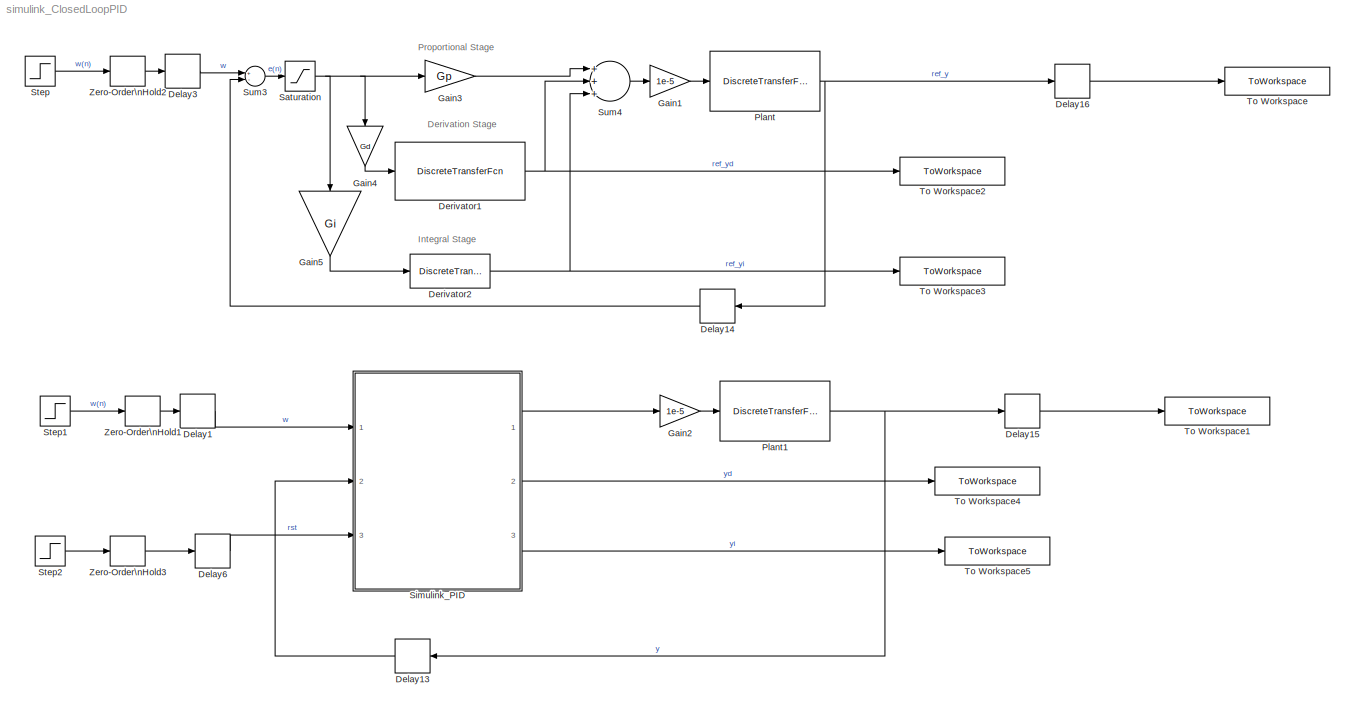
MODEL simulink_ClosedLoopPID
KIND model
CONFIG PreLoadFcn = N = 1024\n\nII=37+1\n\n Kp = 35.4\n Ki = 102\nKd = 0.292\nTf = 0.0433\nTs = 0.01\nMAX_VAL  = 1024%64\nC  = -0.7931   % derivation constant\nGd =  6.0324  % Derivation gain\nGp = 35.3675 % Proportional gain\nGi =  0.5112   % Integration gain\nmax_clip =   MAX_VAL-1\nmin_clip =  -MAX_VAL
CONFIG StopFcn = clc;\ndiff_y = simout_ref_y - simout_y;\nfigure; plot(diff_y); grid; title 'DIFF Y'\ndiff_yi = simout_ref_yi - simout_yi;\nfigure; plot(diff_yi); grid; title 'DIFF Yi'\ndiff_yd = simout_ref_yd - simout_yd;\nfigure; plot(diff_yd); grid; title 'DIFF Yd'
BLOCK [Delay] Delay1
  DelayLength = 11
  ExternalReset = None
  InputPortMap = u0
  Ports = [1, 1]
  SID = 93
BLOCK [Delay] Delay13
  DelayLength = 1
  ExternalReset = None
  InputPortMap = u0
  Ports = [1, 1]
  SID = 202
BLOCK [Delay] Delay14
  DelayLength = 1
  ExternalReset = None
  InputPortMap = u0
  Ports = [1, 1]
  SID = 203
BLOCK [Delay] Delay15
  DelayLength = 1
  ExternalReset = None
  InputPortMap = u0
  Ports = [1, 1]
  SID = 204
BLOCK [Delay] Delay16
  DelayLength = 1
  ExternalReset = None
  InputPortMap = u0
  Ports = [1, 1]
  SID = 205
BLOCK [Delay] Delay3
  DelayLength = 11
  ExternalReset = None
  InputPortMap = u0
  Ports = [1, 1]
  SID = 55
BLOCK [Delay] Delay6
  DelayLength = 10
  ExternalReset = None
  InputPortMap = u0
  Ports = [1, 1]
  SID = 98
BLOCK [DiscreteTransferFcn] Derivator1
  Denominator = [1 C]
  Numerator = [1 -1]
  SID = 50
  SampleTime = II
BLOCK [DiscreteTransferFcn] Derivator2
  Denominator = [1 -1]
  Numerator = [1 1]
  SID = 48
  SampleTime = II
  SaturateOnIntegerOverflow = on
BLOCK [Gain] Gain1
  Gain = 1e-5
  OutDataTypeStr = Inherit: Inherit via internal rule
  ParamDataTypeStr = Inherit: Inherit via internal rule
  SID = 54
  SaturateOnIntegerOverflow = off
BLOCK [Gain] Gain2
  Gain = 1e-5
  OutDataTypeStr = Inherit: Inherit via internal rule
  ParamDataTypeStr = Inherit: Inherit via internal rule
  SID = 90
  SaturateOnIntegerOverflow = off
BLOCK [Gain] Gain3
  Gain = Gp
  OutDataTypeStr = Inherit: Inherit via internal rule
  ParamDataTypeStr = Inherit: Inherit via internal rule
  SID = 43
  SaturateOnIntegerOverflow = off
BLOCK [Gain] Gain4
  Gain = Gd
  OutDataTypeStr = Inherit: Inherit via internal rule
  ParamDataTypeStr = Inherit: Inherit via internal rule
  SID = 51
  SaturateOnIntegerOverflow = off
BLOCK [Gain] Gain5
  Gain = Gi
  OutDataTypeStr = Inherit: Inherit via internal rule
  ParamDataTypeStr = Inherit: Inherit via internal rule
  SID = 49
  SaturateOnIntegerOverflow = off
BLOCK [DiscreteTransferFcn] Plant
  Denominator = [1 -1.903 0.9048]
  Numerator = [2.38 4.76 2.38]
  SID = 53
  SampleTime = II
BLOCK [DiscreteTransferFcn] Plant1
  Denominator = [1 -1.903 0.9048]
  Numerator = [2.38 4.76 2.38]
  SID = 91
  SampleTime = II
BLOCK [Saturate] Saturation
  InputPortMap = u0
  LowerLimit = min_clip
  Ports = [1, 1]
  SID = 101
  UpperLimit = max_clip
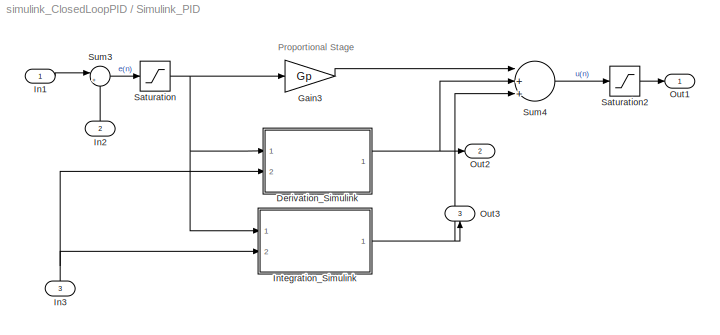
BLOCK [SubSystem] Simulink_PID
  FunctionWithSeparateData = off
  MaskHideContents = off
  MinAlgLoopOccurrences = off
  Opaque = off
  Ports = [3, 3]
  PropExecContextOutsideSubsystem = off
  RTWSystemCode = Auto
  RequestExecContextInheritance = off
  SID = 57
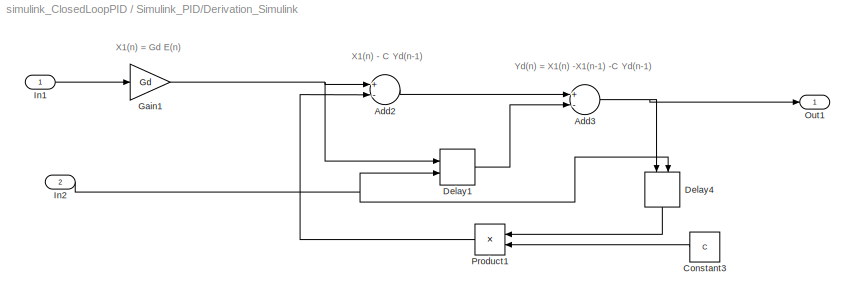
BLOCK [SubSystem] Simulink_PID/Derivation_Simulink
  FunctionWithSeparateData = off
  MaskHideContents = off
  MinAlgLoopOccurrences = off
  Opaque = off
  Ports = [2, 1]
  PropExecContextOutsideSubsystem = off
  RTWSystemCode = Auto
  RequestExecContextInheritance = off
  SID = 61
BLOCK [Sum] Simulink_PID/Derivation_Simulink/Add2
  InputSameDT = off
  Inputs = +-
  OutDataTypeStr = Inherit: Inherit via internal rule
  Ports = [2, 1]
  SID = 64
  SaturateOnIntegerOverflow = off
BLOCK [Sum] Simulink_PID/Derivation_Simulink/Add3
  InputSameDT = off
  Inputs = +-
  OutDataTypeStr = Inherit: Inherit via internal rule
  Ports = [2, 1]
  SID = 65
  SaturateOnIntegerOverflow = off
BLOCK [Constant] Simulink_PID/Derivation_Simulink/Constant3
  OutDataTypeStr = single
  SID = 66
  SampleTime = II
  Value = C
BLOCK [Delay] Simulink_PID/Derivation_Simulink/Delay1
  DelayLength = 1
  ExternalReset = Level hold
  InputPortMap = u0,r5
  Ports = [2, 1]
  SID = 67
BLOCK [Delay] Simulink_PID/Derivation_Simulink/Delay4
  DelayLength = 1
  ExternalReset = Level hold
  InputPortMap = u0,r5
  Ports = [2, 1]
  SID = 68
BLOCK [Gain] Simulink_PID/Derivation_Simulink/Gain1
  Gain = Gd
  OutDataTypeStr = Inherit: Inherit via internal rule
  ParamDataTypeStr = Inherit: Inherit via internal rule
  SID = 69
  SaturateOnIntegerOverflow = off
BLOCK [Inport] Simulink_PID/Derivation_Simulink/In1
  IconDisplay = Port number
  SID = 62
BLOCK [Inport] Simulink_PID/Derivation_Simulink/In2
  IconDisplay = Port number
  Port = 2
  SID = 63
BLOCK [Outport] Simulink_PID/Derivation_Simulink/Out1
  IconDisplay = Port number
  SID = 71
BLOCK [Product] Simulink_PID/Derivation_Simulink/Product1
  InputSameDT = off
  OutDataTypeStr = Inherit: Inherit via internal rule
  Ports = [2, 1]
  SID = 70
  SaturateOnIntegerOverflow = off
BLOCK [Gain] Simulink_PID/Gain3
  Gain = Gp
  OutDataTypeStr = Inherit: Inherit via internal rule
  ParamDataTypeStr = Inherit: Inherit via internal rule
  SID = 72
  SaturateOnIntegerOverflow = off
BLOCK [Inport] Simulink_PID/In1
  IconDisplay = Port number
  SID = 58
BLOCK [Inport] Simulink_PID/In2
  IconDisplay = Port number
  Port = 2
  SID = 59
BLOCK [Inport] Simulink_PID/In3
  IconDisplay = Port number
  Port = 3
  SID = 60
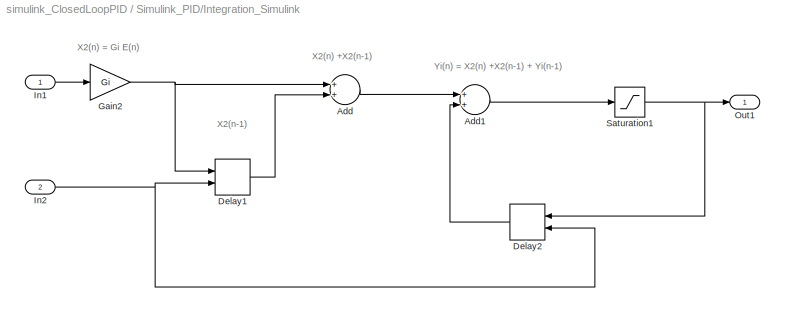
BLOCK [SubSystem] Simulink_PID/Integration_Simulink
  FunctionWithSeparateData = off
  MaskHideContents = off
  MinAlgLoopOccurrences = off
  Opaque = off
  Ports = [2, 1]
  PropExecContextOutsideSubsystem = off
  RTWSystemCode = Auto
  RequestExecContextInheritance = off
  SID = 73
BLOCK [Sum] Simulink_PID/Integration_Simulink/Add
  InputSameDT = off
  OutDataTypeStr = Inherit: Inherit via internal rule
  Ports = [2, 1]
  SID = 76
  SaturateOnIntegerOverflow = off
BLOCK [Sum] Simulink_PID/Integration_Simulink/Add1
  InputSameDT = off
  OutDataTypeStr = Inherit: Inherit via internal rule
  Ports = [2, 1]
  SID = 77
  SaturateOnIntegerOverflow = off
BLOCK [Delay] Simulink_PID/Integration_Simulink/Delay1
  DelayLength = 1
  ExternalReset = Level hold
  InputPortMap = u0,r5
  Ports = [2, 1]
  SID = 78
BLOCK [Delay] Simulink_PID/Integration_Simulink/Delay2
  DelayLength = 1
  ExternalReset = Level hold
  InputPortMap = u0,r5
  Ports = [2, 1]
  SID = 79
BLOCK [Gain] Simulink_PID/Integration_Simulink/Gain2
  Gain = Gi
  OutDataTypeStr = Inherit: Inherit via internal rule
  ParamDataTypeStr = Inherit: Inherit via internal rule
  SID = 80
  SaturateOnIntegerOverflow = off
BLOCK [Inport] Simulink_PID/Integration_Simulink/In1
  IconDisplay = Port number
  SID = 74
BLOCK [Inport] Simulink_PID/Integration_Simulink/In2
  IconDisplay = Port number
  Port = 2
  SID = 75
BLOCK [Outport] Simulink_PID/Integration_Simulink/Out1
  IconDisplay = Port number
  SID = 82
BLOCK [Saturate] Simulink_PID/Integration_Simulink/Saturation1
  InputPortMap = u0
  LowerLimit = min_clip
  Ports = [1, 1]
  SID = 81
  UpperLimit = max_clip
BLOCK [Outport] Simulink_PID/Out1
  IconDisplay = Port number
  SID = 87
BLOCK [Outport] Simulink_PID/Out2
  IconDisplay = Port number
  Port = 2
  SID = 88
BLOCK [Outport] Simulink_PID/Out3
  IconDisplay = Port number
  Port = 3
  SID = 89
BLOCK [Saturate] Simulink_PID/Saturation
  InputPortMap = u0
  LowerLimit = min_clip
  Ports = [1, 1]
  SID = 83
  UpperLimit = max_clip
BLOCK [Saturate] Simulink_PID/Saturation2
  InputPortMap = u0
  LowerLimit = min_clip
  Ports = [1, 1]
  SID = 84
  UpperLimit = max_clip
BLOCK [Sum] Simulink_PID/Sum3
  IconShape = round
  InputSameDT = off
  Inputs = |+-
  OutDataTypeStr = Inherit: Inherit via internal rule
  Ports = [2, 1]
  SID = 85
  SaturateOnIntegerOverflow = off
BLOCK [Sum] Simulink_PID/Sum4
  InputSameDT = off
  Inputs = |+++
  OutDataTypeStr = Inherit: Inherit via internal rule
  Ports = [3, 1]
  SID = 86
  SaturateOnIntegerOverflow = off
BLOCK [Step] Step
  After = 10
  SID = 2
  SampleTime = II
BLOCK [Step] Step1
  After = 10
  SID = 94
  SampleTime = II
BLOCK [Step] Step2
  After = 0
  Before = 1
  SID = 99
  SampleTime = II
BLOCK [Sum] Sum3
  InputSameDT = off
  Inputs = +-
  OutDataTypeStr = Inherit: Inherit via internal rule
  Ports = [2, 1]
  SID = 46
  SampleTime = II
  SaturateOnIntegerOverflow = off
BLOCK [Sum] Sum4
  InputSameDT = off
  Inputs = +++
  OutDataTypeStr = Inherit: Inherit via internal rule
  Ports = [3, 1]
  SID = 47
  SampleTime = II
  SaturateOnIntegerOverflow = off
BLOCK [ToWorkspace] To Workspace
  MaxDataPoints = inf
  Ports = [1]
  SID = 102
  SampleTime = -1
  SaveFormat = Array
  VariableName = simout_ref_y
BLOCK [ToWorkspace] To Workspace1
  MaxDataPoints = inf
  Ports = [1]
  SID = 103
  SampleTime = -1
  SaveFormat = Array
  VariableName = simout_y
BLOCK [ToWorkspace] To Workspace2
  MaxDataPoints = inf
  Ports = [1]
  SID = 104
  SampleTime = -1
  SaveFormat = Array
  VariableName = simout_ref_yd
BLOCK [ToWorkspace] To Workspace3
  MaxDataPoints = inf
  Ports = [1]
  SID = 105
  SampleTime = -1
  SaveFormat = Array
  VariableName = simout_ref_yi
BLOCK [ToWorkspace] To Workspace4
  MaxDataPoints = inf
  Ports = [1]
  SID = 106
  SampleTime = -1
  SaveFormat = Array
  VariableName = simout_yd
BLOCK [ToWorkspace] To Workspace5
  MaxDataPoints = inf
  Ports = [1]
  SID = 107
  SampleTime = -1
  SaveFormat = Array
  VariableName = simout_yi
BLOCK [ZeroOrderHold] Zero-Order\nHold1
  SID = 95
  SampleTime = II
BLOCK [ZeroOrderHold] Zero-Order\nHold2
  SID = 56
  SampleTime = II
BLOCK [ZeroOrderHold] Zero-Order\nHold3
  SID = 100
  SampleTime = II
ANNOTATION (root): Derivation Stage
ANNOTATION (root): Integral Stage
ANNOTATION (root): Proportional Stage
ANNOTATION Simulink_PID: Proportional Stage
ANNOTATION Simulink_PID/Derivation_Simulink: X1(n) - C Yd(n-1)
ANNOTATION Simulink_PID/Derivation_Simulink: X1(n) = Gd E(n)
ANNOTATION Simulink_PID/Derivation_Simulink: Yd(n) = X1(n) -X1(n-1) -C Yd(n-1)
ANNOTATION Simulink_PID/Integration_Simulink: X2(n) +X2(n-1)
ANNOTATION Simulink_PID/Integration_Simulink: X2(n) = Gi E(n)
ANNOTATION Simulink_PID/Integration_Simulink: X2(n-1)
ANNOTATION Simulink_PID/Integration_Simulink: Yi(n) = X2(n) +X2(n-1) + Yi(n-1)
LINE Delay13:1 -> Simulink_PID:2
LINE Delay14:1 -> Sum3:2
LINE Delay15:1 -> To Workspace1:1
LINE Delay16:1 -> To Workspace:1
LINE Delay1:1 -> Simulink_PID:1
LINE Delay3:1 -> Sum3:1
LINE Delay6:1 -> Simulink_PID:3
NET Derivator1:1 -> Sum4:2, To Workspace2:1
NET Derivator2:1 -> Sum4:3, To Workspace3:1
LINE Gain1:1 -> Plant:1
LINE Gain2:1 -> Plant1:1
LINE Gain3:1 -> Sum4:1
LINE Gain4:1 -> Derivator1:1
LINE Gain5:1 -> Derivator2:1
NET Plant1:1 -> Delay13:1, Delay15:1
NET Plant:1 -> Delay14:1, Delay16:1
NET Saturation:1 -> Gain3:1, Gain4:1, Gain5:1
LINE Simulink_PID/Derivation_Simulink/Add2:1 -> Simulink_PID/Derivation_Simulink/Add3:1
NET Simulink_PID/Derivation_Simulink/Add3:1 -> Simulink_PID/Derivation_Simulink/Delay4:1, Simulink_PID/Derivation_Simulink/Out1:1
LINE Simulink_PID/Derivation_Simulink/Constant3:1 -> Simulink_PID/Derivation_Simulink/Product1:2
LINE Simulink_PID/Derivation_Simulink/Delay1:1 -> Simulink_PID/Derivation_Simulink/Add3:2
LINE Simulink_PID/Derivation_Simulink/Delay4:1 -> Simulink_PID/Derivation_Simulink/Product1:1
NET Simulink_PID/Derivation_Simulink/Gain1:1 -> Simulink_PID/Derivation_Simulink/Add2:1, Simulink_PID/Derivation_Simulink/Delay1:1
LINE Simulink_PID/Derivation_Simulink/In1:1 -> Simulink_PID/Derivation_Simulink/Gain1:1
NET Simulink_PID/Derivation_Simulink/In2:1 -> Simulink_PID/Derivation_Simulink/Delay1:2, Simulink_PID/Derivation_Simulink/Delay4:2
LINE Simulink_PID/Derivation_Simulink/Product1:1 -> Simulink_PID/Derivation_Simulink/Add2:2
NET Simulink_PID/Derivation_Simulink:1 -> Simulink_PID/Out2:1, Simulink_PID/Sum4:2
LINE Simulink_PID/Gain3:1 -> Simulink_PID/Sum4:1
LINE Simulink_PID/In1:1 -> Simulink_PID/Sum3:1
LINE Simulink_PID/In2:1 -> Simulink_PID/Sum3:2
NET Simulink_PID/In3:1 -> Simulink_PID/Derivation_Simulink:2, Simulink_PID/Integration_Simulink:2
LINE Simulink_PID/Integration_Simulink/Add1:1 -> Simulink_PID/Integration_Simulink/Saturation1:1
LINE Simulink_PID/Integration_Simulink/Add:1 -> Simulink_PID/Integration_Simulink/Add1:1
LINE Simulink_PID/Integration_Simulink/Delay1:1 -> Simulink_PID/Integration_Simulink/Add:2
LINE Simulink_PID/Integration_Simulink/Delay2:1 -> Simulink_PID/Integration_Simulink/Add1:2
NET Simulink_PID/Integration_Simulink/Gain2:1 -> Simulink_PID/Integration_Simulink/Add:1, Simulink_PID/Integration_Simulink/Delay1:1
LINE Simulink_PID/Integration_Simulink/In1:1 -> Simulink_PID/Integration_Simulink/Gain2:1
NET Simulink_PID/Integration_Simulink/In2:1 -> Simulink_PID/Integration_Simulink/Delay1:2, Simulink_PID/Integration_Simulink/Delay2:2
NET Simulink_PID/Integration_Simulink/Saturation1:1 -> Simulink_PID/Integration_Simulink/Delay2:1, Simulink_PID/Integration_Simulink/Out1:1
NET Simulink_PID/Integration_Simulink:1 -> Simulink_PID/Out3:1, Simulink_PID/Sum4:3
LINE Simulink_PID/Saturation2:1 -> Simulink_PID/Out1:1
NET Simulink_PID/Saturation:1 -> Simulink_PID/Derivation_Simulink:1, Simulink_PID/Gain3:1, Simulink_PID/Integration_Simulink:1
LINE Simulink_PID/Sum3:1 -> Simulink_PID/Saturation:1
LINE Simulink_PID/Sum4:1 -> Simulink_PID/Saturation2:1
LINE Simulink_PID:1 -> Gain2:1
LINE Simulink_PID:2 -> To Workspace4:1
LINE Simulink_PID:3 -> To Workspace5:1
LINE Step1:1 -> Zero-Order\nHold1:1
LINE Step2:1 -> Zero-Order\nHold3:1
LINE Step:1 -> Zero-Order\nHold2:1
LINE Sum3:1 -> Saturation:1
LINE Sum4:1 -> Gain1:1
LINE Zero-Order\nHold1:1 -> Delay1:1
LINE Zero-Order\nHold2:1 -> Delay3:1
LINE Zero-Order\nHold3:1 -> Delay6:1
note: NET lines group one-source signal fan-out (src -> all destinations, sorted); 1:1 wires keep LINE
